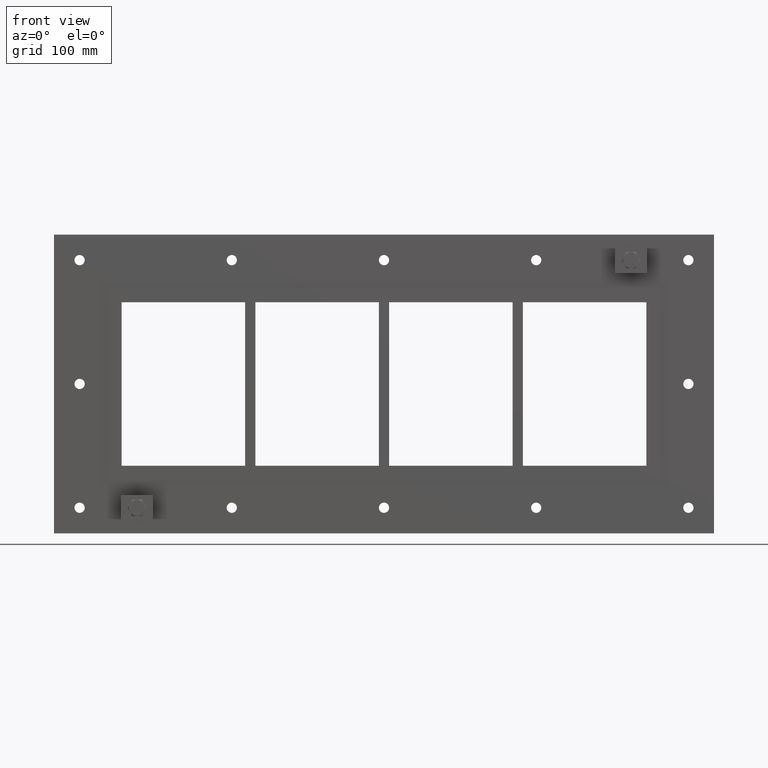
[diagram: clean part render]
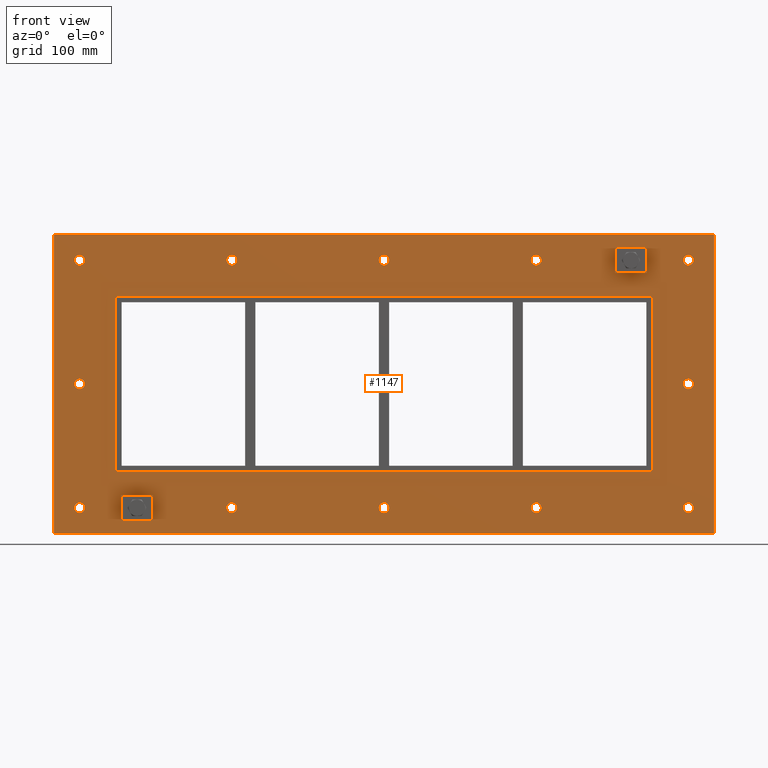
[diagram: same view with one face highlighted and labeled with its STEP entity id]
A machine part, front view. The second image highlights one B-rep face of the part: STEP entity #1147.
In plain terms, the highlighted planar face has unit normal (0, 1, 0).
Its self-contained STEP definition (entity closure, byte-faithful):
#84=CARTESIAN_POINT('',(-292.00000000000023,0.0,-120.74999999999996));
#85=VERTEX_POINT('',#84);
#86=CARTESIAN_POINT('',(-297.00000000000023,0.0,-120.74999999999996));
#87=DIRECTION('',(0.0,1.0,0.0));
#88=DIRECTION('',(1.0,0.0,0.0));
#89=AXIS2_PLACEMENT_3D('',#86,#87,#88);
#90=CIRCLE('',#89,5.0);
#91=EDGE_CURVE('',#85,#85,#90,.T.);
#112=CARTESIAN_POINT('',(301.99999999999983,0.0,0.050000000000043));
#113=VERTEX_POINT('',#112);
#114=CARTESIAN_POINT('',(296.99999999999983,0.0,0.050000000000043));
#115=DIRECTION('',(0.0,1.0,0.0));
#116=DIRECTION('',(1.0,0.0,0.0));
#117=AXIS2_PLACEMENT_3D('',#114,#115,#116);
#118=CIRCLE('',#117,5.0);
#119=EDGE_CURVE('',#113,#113,#118,.T.);
#140=CARTESIAN_POINT('',(-292.00000000000023,0.0,0.050000000000043));
#141=VERTEX_POINT('',#140);
#142=CARTESIAN_POINT('',(-297.00000000000023,0.0,0.050000000000043));
#143=DIRECTION('',(0.0,1.0,0.0));
#144=DIRECTION('',(1.0,0.0,0.0));
#145=AXIS2_PLACEMENT_3D('',#142,#143,#144);
#146=CIRCLE('',#145,5.0);
#147=EDGE_CURVE('',#141,#141,#146,.T.);
#168=CARTESIAN_POINT('',(-143.5000000000002,0.0,120.85000000000005));
#169=VERTEX_POINT('',#168);
#170=CARTESIAN_POINT('',(-148.5000000000002,0.0,120.85000000000005));
#171=DIRECTION('',(0.0,1.0,0.0));
#172=DIRECTION('',(1.0,0.0,0.0));
#173=AXIS2_PLACEMENT_3D('',#170,#171,#172);
#174=CIRCLE('',#173,5.0);
#175=EDGE_CURVE('',#169,#169,#174,.T.);
#196=CARTESIAN_POINT('',(-143.50000000000017,0.0,-120.74999999999996));
#197=VERTEX_POINT('',#196);
#198=CARTESIAN_POINT('',(-148.50000000000017,0.0,-120.74999999999996));
#199=DIRECTION('',(0.0,1.0,0.0));
#200=DIRECTION('',(1.0,0.0,0.0));
#201=AXIS2_PLACEMENT_3D('',#198,#199,#200);
#202=CIRCLE('',#201,5.0);
#203=EDGE_CURVE('',#197,#197,#202,.T.);
#224=CARTESIAN_POINT('',(4.999999999999822,0.0,120.85000000000005));
#225=VERTEX_POINT('',#224);
#226=CARTESIAN_POINT('',(-1.776357E-013,0.0,120.85000000000005));
#227=DIRECTION('',(0.0,1.0,0.0));
#228=DIRECTION('',(1.0,0.0,0.0));
#229=AXIS2_PLACEMENT_3D('',#226,#227,#228);
#230=CIRCLE('',#229,5.0);
#231=EDGE_CURVE('',#225,#225,#230,.T.);
#252=CARTESIAN_POINT('',(4.999999999999858,0.0,-120.74999999999996));
#253=VERTEX_POINT('',#252);
#254=CARTESIAN_POINT('',(-1.421085E-013,0.0,-120.74999999999996));
#255=DIRECTION('',(0.0,1.0,0.0));
#256=DIRECTION('',(1.0,0.0,0.0));
#257=AXIS2_PLACEMENT_3D('',#254,#255,#256);
#258=CIRCLE('',#257,5.0);
#259=EDGE_CURVE('',#253,#253,#258,.T.);
#280=CARTESIAN_POINT('',(153.49999999999983,0.0,120.85000000000005));
#281=VERTEX_POINT('',#280);
#282=CARTESIAN_POINT('',(148.49999999999983,0.0,120.85000000000005));
#283=DIRECTION('',(0.0,1.0,0.0));
#284=DIRECTION('',(1.0,0.0,0.0));
#285=AXIS2_PLACEMENT_3D('',#282,#283,#284);
#286=CIRCLE('',#285,5.0);
#287=EDGE_CURVE('',#281,#281,#286,.T.);
#308=CARTESIAN_POINT('',(153.49999999999989,0.0,-120.74999999999996));
#309=VERTEX_POINT('',#308);
#310=CARTESIAN_POINT('',(148.49999999999989,0.0,-120.74999999999996));
#311=DIRECTION('',(0.0,1.0,0.0));
#312=DIRECTION('',(1.0,0.0,0.0));
#313=AXIS2_PLACEMENT_3D('',#310,#311,#312);
#314=CIRCLE('',#313,5.0);
#315=EDGE_CURVE('',#309,#309,#314,.T.);
#336=CARTESIAN_POINT('',(301.99999999999989,0.0,-120.74999999999996));
#337=VERTEX_POINT('',#336);
#338=CARTESIAN_POINT('',(296.99999999999989,0.0,-120.74999999999996));
#339=DIRECTION('',(0.0,1.0,0.0));
#340=DIRECTION('',(1.0,0.0,0.0));
#341=AXIS2_PLACEMENT_3D('',#338,#339,#340);
#342=CIRCLE('',#341,5.0);
#343=EDGE_CURVE('',#337,#337,#342,.T.);
#364=CARTESIAN_POINT('',(-292.00000000000023,0.0,120.85000000000005));
#365=VERTEX_POINT('',#364);
#366=CARTESIAN_POINT('',(-297.00000000000023,0.0,120.85000000000005));
#367=DIRECTION('',(0.0,1.0,0.0));
#368=DIRECTION('',(1.0,0.0,0.0));
#369=AXIS2_PLACEMENT_3D('',#366,#367,#368);
#370=CIRCLE('',#369,5.0);
#371=EDGE_CURVE('',#365,#365,#370,.T.);
#392=CARTESIAN_POINT('',(301.99999999999983,0.0,120.85000000000005));
#393=VERTEX_POINT('',#392);
#394=CARTESIAN_POINT('',(296.99999999999983,0.0,120.85000000000005));
#395=DIRECTION('',(0.0,1.0,0.0));
#396=DIRECTION('',(1.0,0.0,0.0));
#397=AXIS2_PLACEMENT_3D('',#394,#395,#396);
#398=CIRCLE('',#397,5.0);
#399=EDGE_CURVE('',#393,#393,#398,.T.);
#1002=CARTESIAN_POINT('',(-3.645756E-014,0.0,2.376388E-014));
#1003=DIRECTION('',(0.0,1.0,0.0));
#1004=DIRECTION('',(0.0,0.0,1.0));
#1005=AXIS2_PLACEMENT_3D('',#1002,#1003,#1004);
#1006=PLANE('',#1005);
#1007=CARTESIAN_POINT('',(-322.0,0.0,145.75));
#1008=VERTEX_POINT('',#1007);
#1009=CARTESIAN_POINT('',(321.99999999999994,0.0,145.75));
#1010=VERTEX_POINT('',#1009);
#1011=CARTESIAN_POINT('',(-322.0,0.0,145.75));
#1012=DIRECTION('',(1.0,0.0,0.0));
#1013=VECTOR('',#1012,644.0);
#1014=LINE('',#1011,#1013);
#1015=EDGE_CURVE('',#1008,#1010,#1014,.T.);
#1016=ORIENTED_EDGE('',*,*,#1015,.F.);
#1017=CARTESIAN_POINT('',(-322.0,0.0,-145.74999999999994));
#1018=VERTEX_POINT('',#1017);
#1019=CARTESIAN_POINT('',(-322.0,0.0,-145.74999999999994));
#1020=DIRECTION('',(0.0,0.0,1.0));
#1021=VECTOR('',#1020,291.5);
#1022=LINE('',#1019,#1021);
#1023=EDGE_CURVE('',#1018,#1008,#1022,.T.);
#1024=ORIENTED_EDGE('',*,*,#1023,.F.);
#1025=CARTESIAN_POINT('',(321.99999999999994,0.0,-145.74999999999994));
#1026=VERTEX_POINT('',#1025);
#1027=CARTESIAN_POINT('',(321.99999999999994,0.0,-145.74999999999994));
#1028=DIRECTION('',(-1.0,0.0,0.0));
#1029=VECTOR('',#1028,644.0);
#1030=LINE('',#1027,#1029);
#1031=EDGE_CURVE('',#1026,#1018,#1030,.T.);
#1032=ORIENTED_EDGE('',*,*,#1031,.F.);
#1033=CARTESIAN_POINT('',(321.99999999999994,0.0,145.75));
#1034=DIRECTION('',(0.0,0.0,-1.0));
#1035=VECTOR('',#1034,291.5);
#1036=LINE('',#1033,#1035);
#1037=EDGE_CURVE('',#1010,#1026,#1036,.T.);
#1038=ORIENTED_EDGE('',*,*,#1037,.F.);
#1039=EDGE_LOOP('',(#1016,#1024,#1032,#1038));
#1040=FACE_OUTER_BOUND('',#1039,.T.);
#1041=ORIENTED_EDGE('',*,*,#91,.T.);
#1042=EDGE_LOOP('',(#1041));
#1043=FACE_BOUND('',#1042,.T.);
#1044=ORIENTED_EDGE('',*,*,#119,.T.);
#1045=EDGE_LOOP('',(#1044));
#1046=FACE_BOUND('',#1045,.T.);
#1047=ORIENTED_EDGE('',*,*,#147,.T.);
#1048=EDGE_LOOP('',(#1047));
#1049=FACE_BOUND('',#1048,.T.);
#1050=ORIENTED_EDGE('',*,*,#175,.T.);
#1051=EDGE_LOOP('',(#1050));
#1052=FACE_BOUND('',#1051,.T.);
#1053=ORIENTED_EDGE('',*,*,#203,.T.);
#1054=EDGE_LOOP('',(#1053));
#1055=FACE_BOUND('',#1054,.T.);
#1056=ORIENTED_EDGE('',*,*,#231,.T.);
#1057=EDGE_LOOP('',(#1056));
#1058=FACE_BOUND('',#1057,.T.);
#1059=ORIENTED_EDGE('',*,*,#259,.T.);
#1060=EDGE_LOOP('',(#1059));
#1061=FACE_BOUND('',#1060,.T.);
#1062=ORIENTED_EDGE('',*,*,#287,.T.);
#1063=EDGE_LOOP('',(#1062));
#1064=FACE_BOUND('',#1063,.T.);
#1065=ORIENTED_EDGE('',*,*,#315,.T.);
#1066=EDGE_LOOP('',(#1065));
#1067=FACE_BOUND('',#1066,.T.);
#1068=ORIENTED_EDGE('',*,*,#343,.T.);
#1069=EDGE_LOOP('',(#1068));
#1070=FACE_BOUND('',#1069,.T.);
#1071=ORIENTED_EDGE('',*,*,#371,.T.);
#1072=EDGE_LOOP('',(#1071));
#1073=FACE_BOUND('',#1072,.T.);
#1074=ORIENTED_EDGE('',*,*,#399,.T.);
#1075=EDGE_LOOP('',(#1074));
#1076=FACE_BOUND('',#1075,.T.);
#1077=CARTESIAN_POINT('',(-260.0,0.0,85.749999999999957));
#1078=VERTEX_POINT('',#1077);
#1079=CARTESIAN_POINT('',(-262.0,0.0,83.749999999999972));
#1080=VERTEX_POINT('',#1079);
#1081=CARTESIAN_POINT('',(-260.0,0.0,83.749999999999972));
#1082=DIRECTION('',(0.0,-1.0,0.0));
#1083=DIRECTION('',(-0.707106781186554,0.0,0.707106781186541));
#1084=AXIS2_PLACEMENT_3D('',#1081,#1082,#1083);
#1085=CIRCLE('',#1084,2.0);
#1086=EDGE_CURVE('',#1078,#1080,#1085,.T.);
#1087=ORIENTED_EDGE('',*,*,#1086,.F.);
#1088=CARTESIAN_POINT('',(260.0,0.0,85.749999999999957));
#1089=VERTEX_POINT('',#1088);
#1090=CARTESIAN_POINT('',(260.0,0.0,85.749999999999957));
#1091=DIRECTION('',(-1.0,0.0,0.0));
#1092=VECTOR('',#1091,520.0);
#1093=LINE('',#1090,#1092);
#1094=EDGE_CURVE('',#1089,#1078,#1093,.T.);
#1095=ORIENTED_EDGE('',*,*,#1094,.F.);
#1096=CARTESIAN_POINT('',(262.0,0.0,83.749999999999972));
#1097=VERTEX_POINT('',#1096);
#1098=CARTESIAN_POINT('',(260.0,0.0,83.749999999999972));
#1099=DIRECTION('',(0.0,-1.0,0.0));
#1100=DIRECTION('',(0.707106781186554,0.0,0.707106781186541));
#1101=AXIS2_PLACEMENT_3D('',#1098,#1099,#1100);
#1102=CIRCLE('',#1101,2.0);
#1103=EDGE_CURVE('',#1097,#1089,#1102,.T.);
#1104=ORIENTED_EDGE('',*,*,#1103,.F.);
#1105=CARTESIAN_POINT('',(262.0,0.0,-83.749999999999972));
#1106=VERTEX_POINT('',#1105);
#1107=CARTESIAN_POINT('',(262.0,0.0,-83.749999999999957));
#1108=DIRECTION('',(0.0,0.0,1.0));
#1109=VECTOR('',#1108,167.49999999999994);
#1110=LINE('',#1107,#1109);
#1111=EDGE_CURVE('',#1106,#1097,#1110,.T.);
#1112=ORIENTED_EDGE('',*,*,#1111,.F.);
#1113=CARTESIAN_POINT('',(260.0,0.0,-85.749999999999957));
#1114=VERTEX_POINT('',#1113);
#1115=CARTESIAN_POINT('',(260.0,0.0,-83.749999999999972));
#1116=DIRECTION('',(0.0,-1.0,0.0));
#1117=DIRECTION('',(0.707106781186554,0.0,-0.707106781186541));
#1118=AXIS2_PLACEMENT_3D('',#1115,#1116,#1117);
#1119=CIRCLE('',#1118,2.0);
#1120=EDGE_CURVE('',#1114,#1106,#1119,.T.);
#1121=ORIENTED_EDGE('',*,*,#1120,.F.);
#1122=CARTESIAN_POINT('',(-260.0,0.0,-85.749999999999957));
#1123=VERTEX_POINT('',#1122);
#1124=CARTESIAN_POINT('',(-260.0,0.0,-85.749999999999957));
#1125=DIRECTION('',(1.0,0.0,0.0));
#1126=VECTOR('',#1125,520.0);
#1127=LINE('',#1124,#1126);
#1128=EDGE_CURVE('',#1123,#1114,#1127,.T.);
#1129=ORIENTED_EDGE('',*,*,#1128,.F.);
#1130=CARTESIAN_POINT('',(-262.0,0.0,-83.749999999999972));
#1131=VERTEX_POINT('',#1130);
#1132=CARTESIAN_POINT('',(-260.0,0.0,-83.749999999999972));
#1133=DIRECTION('',(0.0,-1.0,0.0));
#1134=DIRECTION('',(-0.707106781186554,0.0,-0.707106781186541));
#1135=AXIS2_PLACEMENT_3D('',#1132,#1133,#1134);
#1136=CIRCLE('',#1135,2.0);
#1137=EDGE_CURVE('',#1131,#1123,#1136,.T.);
#1138=ORIENTED_EDGE('',*,*,#1137,.F.);
#1139=CARTESIAN_POINT('',(-262.0,0.0,83.749999999999972));
#1140=DIRECTION('',(0.0,0.0,-1.0));
#1141=VECTOR('',#1140,167.49999999999994);
#1142=LINE('',#1139,#1141);
#1143=EDGE_CURVE('',#1080,#1131,#1142,.T.);
#1144=ORIENTED_EDGE('',*,*,#1143,.F.);
#1145=EDGE_LOOP('',(#1087,#1095,#1104,#1112,#1121,#1129,#1138,#1144));
#1146=FACE_BOUND('',#1145,.T.);
#1147=ADVANCED_FACE('',(#1040,#1043,#1046,#1049,#1052,#1055,#1058,#1061,#1064,#1067,#1070,#1073,#1076,#1146),#1006,.F.);